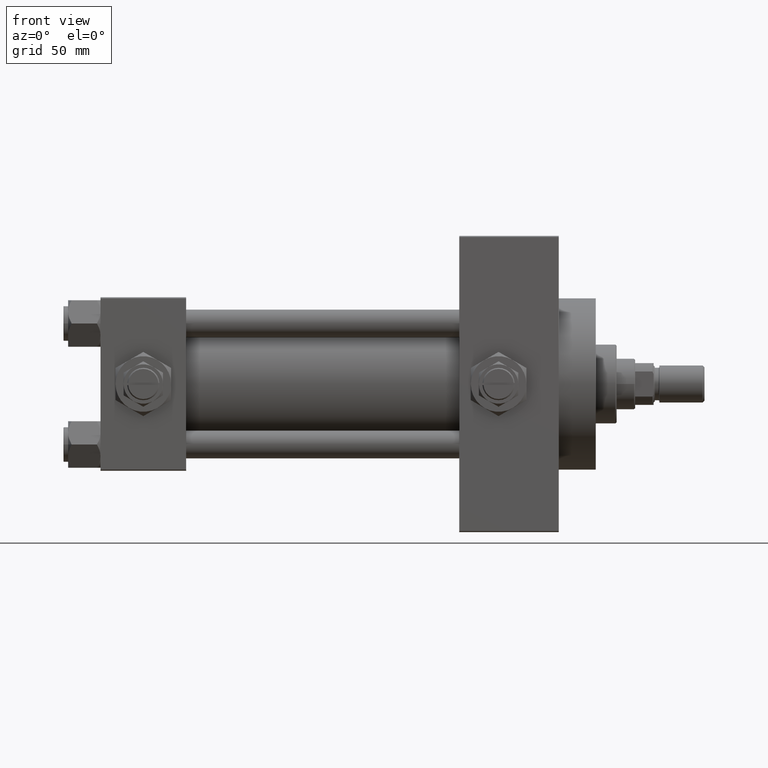
[diagram: clean part render]
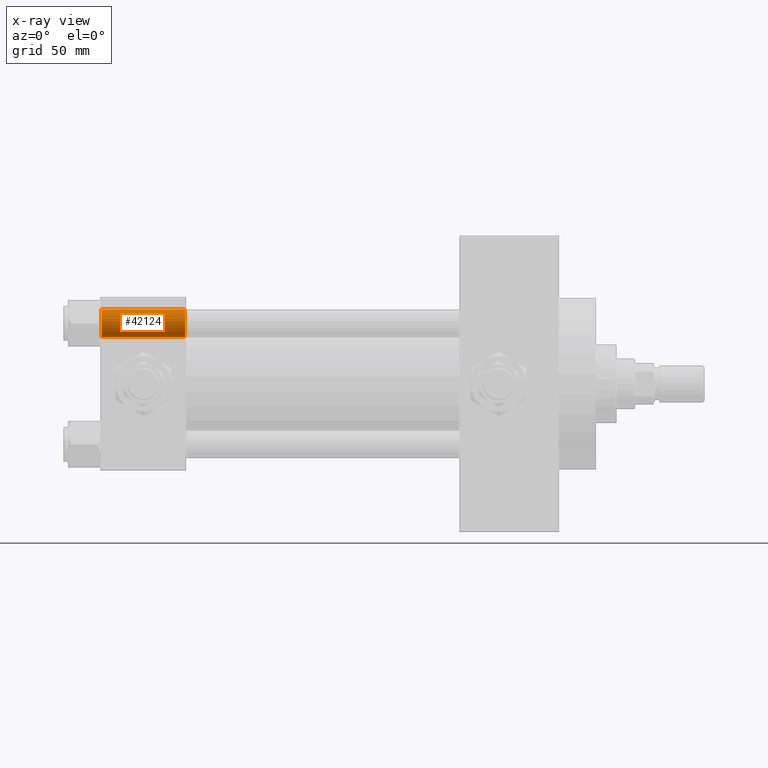
[diagram: x-ray — body ghosted, one internal face saturated and labeled with its STEP entity id]
A machine part, front view, then the same camera in x-ray: the body is ghosted and one INTERNAL B-rep face — a face not visible from any outside direction — is saturated and labeled: STEP entity #42124.
In plain terms, the highlighted cylindrical surface (edge-blend (fillet) strip) has radius 6 mm, axis along (-1, -0, -0).
Its self-contained STEP definition (entity closure, byte-faithful):
#171 = CARTESIAN_POINT ( 'NONE',  ( 36.50000000000000000, -26.14999999999999147, 26.15000000000000924 ) ) ;
#2179 = EDGE_CURVE ( 'NONE', #20836, #42080, #23259, .T. ) ;
#2652 = VECTOR ( 'NONE', #49042, 1000.000000000000000 ) ;
#3593 = EDGE_CURVE ( 'NONE', #20836, #32890, #18624, .T. ) ;
#3930 = EDGE_LOOP ( 'NONE', ( #17400, #7515, #18986, #17583 ) ) ;
#7515 = ORIENTED_EDGE ( 'NONE', *, *, #46204, .T. ) ;
#7730 = DIRECTION ( 'NONE',  ( -1.000000000000000000, 0.000000000000000000, 0.000000000000000000 ) ) ;
#8225 = CARTESIAN_POINT ( 'NONE',  ( 0.5000000000000281997, -26.14999999999999147, 26.15000000000000924 ) ) ;
#10554 = AXIS2_PLACEMENT_3D ( 'NONE', #171, #21560, #17525 ) ;
#10881 = CARTESIAN_POINT ( 'NONE',  ( 37.00000000000000711, -26.14999999999999147, 20.15000000000001279 ) ) ;
#14858 = CIRCLE ( 'NONE', #18875, 6.000000000000001776 ) ;
#15558 = DIRECTION ( 'NONE',  ( 0.000000000000000000, 0.000000000000000000, 1.000000000000000000 ) ) ;
#17400 = ORIENTED_EDGE ( 'NONE', *, *, #3593, .T. ) ;
#17525 = DIRECTION ( 'NONE',  ( 0.000000000000000000, 0.000000000000000000, 1.000000000000000000 ) ) ;
#17583 = ORIENTED_EDGE ( 'NONE', *, *, #2179, .F. ) ;
#18624 = CIRCLE ( 'NONE', #10554, 6.000000000000001776 ) ;
#18875 = AXIS2_PLACEMENT_3D ( 'NONE', #8225, #7730, #15558 ) ;
#18986 = ORIENTED_EDGE ( 'NONE', *, *, #21977, .T. ) ;
#20601 = VERTEX_POINT ( 'NONE', #31312 ) ;
#20836 = VERTEX_POINT ( 'NONE', #29532 ) ;
#21560 = DIRECTION ( 'NONE',  ( 1.000000000000000000, -0.000000000000000000, -0.000000000000000000 ) ) ;
#21977 = EDGE_CURVE ( 'NONE', #20601, #42080, #14858, .T. ) ;
#22817 = CARTESIAN_POINT ( 'NONE',  ( 37.00000000000000711, -26.14999999999999147, 26.15000000000000924 ) ) ;
#23259 = LINE ( 'NONE', #42699, #43573 ) ;
#23308 = FACE_OUTER_BOUND ( 'NONE', #3930, .T. ) ;
#25217 = CARTESIAN_POINT ( 'NONE',  ( 36.50000000000000000, -26.14999999999999147, 20.15000000000000924 ) ) ;
#26610 = DIRECTION ( 'NONE',  ( 0.000000000000000000, 0.000000000000000000, 1.000000000000000000 ) ) ;
#27105 = DIRECTION ( 'NONE',  ( -1.000000000000000000, -0.000000000000000000, -0.000000000000000000 ) ) ;
#29532 = CARTESIAN_POINT ( 'NONE',  ( 36.50000000000000000, -26.14999999999999147, 32.15000000000001279 ) ) ;
#30761 = AXIS2_PLACEMENT_3D ( 'NONE', #22817, #27105, #26610 ) ;
#30894 = CYLINDRICAL_SURFACE ( 'NONE', #30761, 6.000000000000001776 ) ;
#31312 = CARTESIAN_POINT ( 'NONE',  ( 0.5000000000000281997, -26.14999999999999147, 20.15000000000000924 ) ) ;
#32890 = VERTEX_POINT ( 'NONE', #25217 ) ;
#33627 = LINE ( 'NONE', #10881, #2652 ) ;
#34210 = CARTESIAN_POINT ( 'NONE',  ( 0.5000000000000281997, -26.14999999999999147, 32.15000000000001279 ) ) ;
#39167 = DIRECTION ( 'NONE',  ( -1.000000000000000000, -0.000000000000000000, -0.000000000000000000 ) ) ;
#42080 = VERTEX_POINT ( 'NONE', #34210 ) ;
#42124 = ADVANCED_FACE ( 'NONE', ( #23308 ), #30894, .F. ) ;
#42699 = CARTESIAN_POINT ( 'NONE',  ( 37.00000000000000711, -26.14999999999999147, 32.15000000000001279 ) ) ;
#43573 = VECTOR ( 'NONE', #39167, 1000.000000000000000 ) ;
#46204 = EDGE_CURVE ( 'NONE', #32890, #20601, #33627, .T. ) ;
#49042 = DIRECTION ( 'NONE',  ( -1.000000000000000000, -0.000000000000000000, -0.000000000000000000 ) ) ;